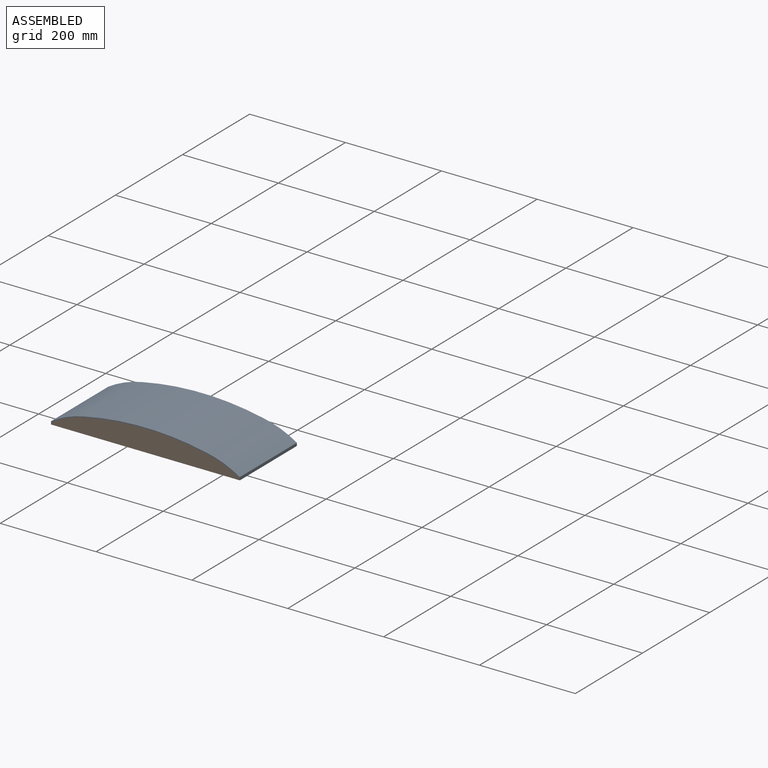
[diagram: assembled view]
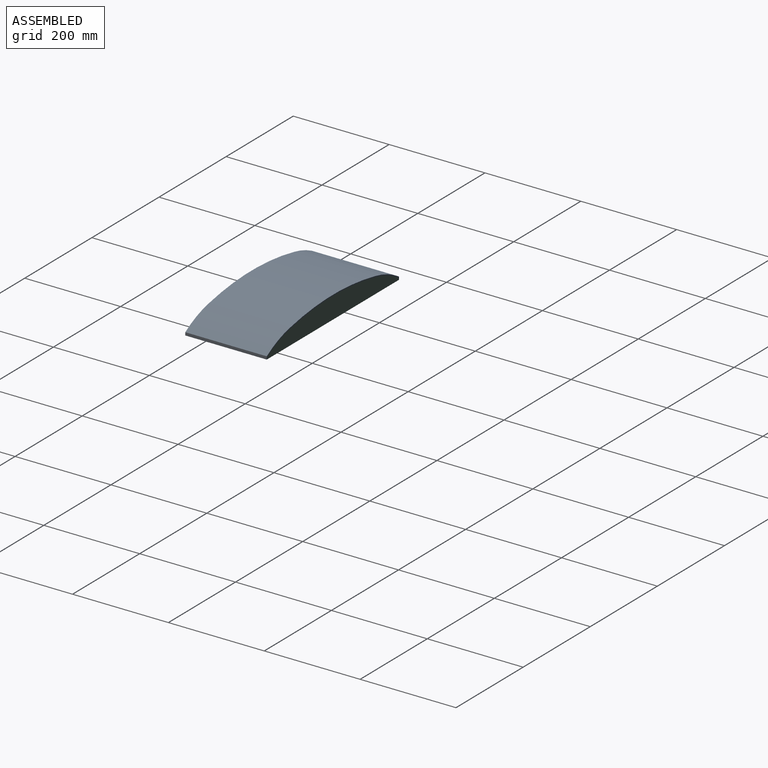
[diagram: assembled view, second angle]
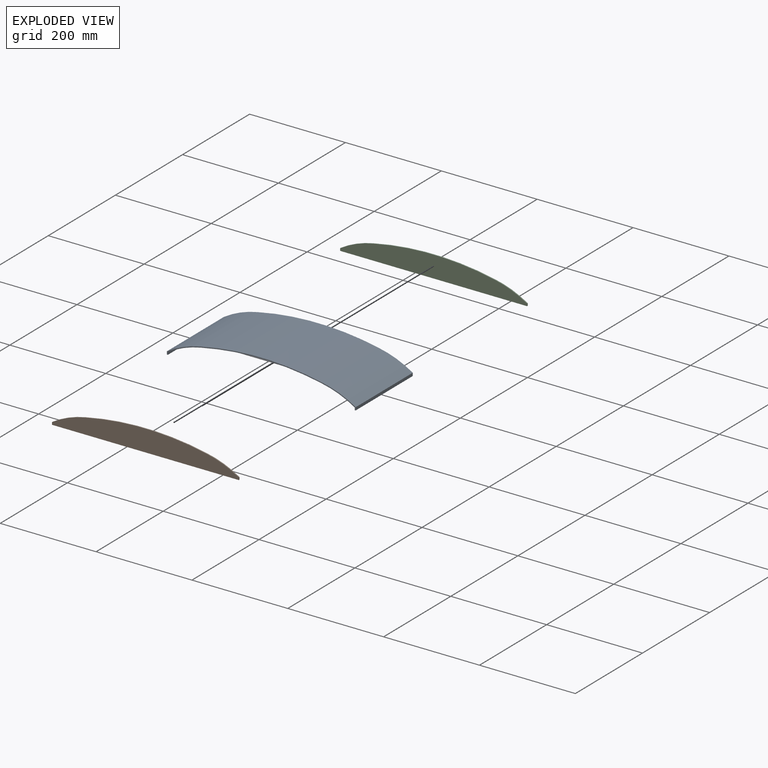
[diagram: exploded view]
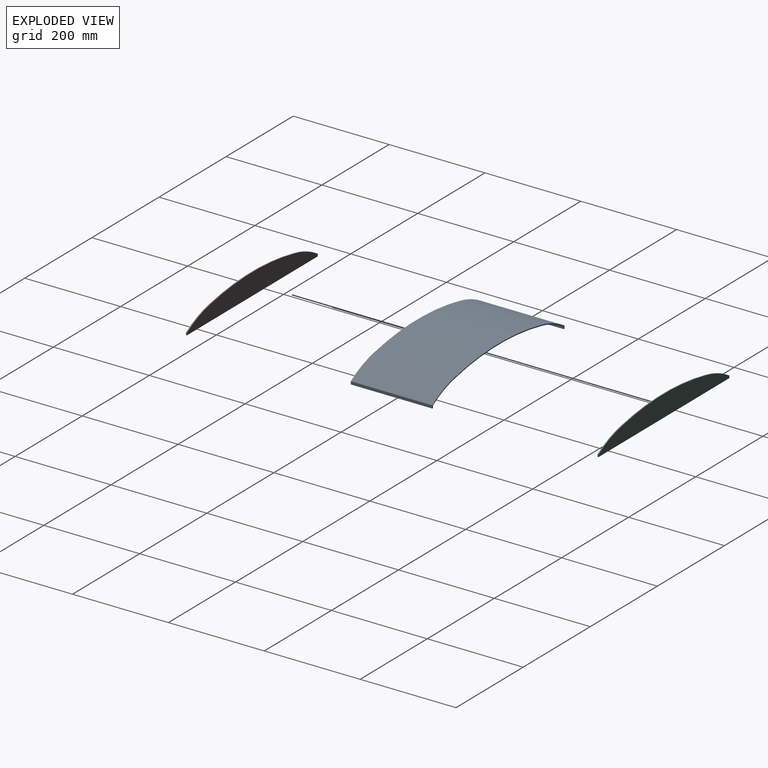
[diagram: exploded view, second angle]
ASSEMBLY  parts=3 mates=6
PART A: 14 faces, bbox 394x170x47 mm
  f0: cylinder r=202mm len=170mm, axis (0,-1,0), area 12981.3mm2, adj f1,f11,f12,f13
  f1: cylinder r=619.12mm len=252.77mm, axis (0,-1,0), area 43274.8mm2, adj f0,f2,f12,f13
  f2: cylinder r=202mm len=170mm, axis (0,-1,0), area 12981.3mm2, adj f1,f3,f12,f13
  f3: plane 170x6.1mm, normal (-1,0,0), area 1037.7mm2, adj f2,f4,f12,f13
  f4: plane 170x2mm, normal (0,0,-1), area 340mm2, adj f3,f5,f12,f13
  f5: plane 170x5mm, normal (1,0,0), area 850mm2, adj f4,f6,f12,f13
  f6: cylinder r=200mm len=170mm, axis (0,-1,0), area 12669.2mm2, adj f5,f7,f12,f13
  f7: cylinder r=617.12mm len=251.99mm, axis (0,-1,0), area 43141.5mm2, adj f6,f8,f12,f13
  f8: cylinder r=200mm len=170mm, axis (0,-1,0), area 12669.2mm2, adj f7,f9,f12,f13
  f9: plane 170x5mm, normal (-1,0,0), area 850mm2, adj f8,f10,f12,f13
  f10: plane 170x2mm, normal (0,0,-1), area 340mm2, adj f9,f11,f12,f13
  f11: plane 170x6.1mm, normal (1,0,0), area 1037.7mm2, adj f0,f10,f12,f13
  f12: plane 393.99x47mm, normal (0,1,0), area 832.3mm2, adj f0,f1,f2,f3,f4,f5,f6,f7
  f13: plane 393.99x47mm, normal (0,-1,0), area 832.3mm2, adj f0,f1,f2,f3,f4,f5,f6,f7
PART B: 8 faces, bbox 390x2x45 mm
  f0: plane 5x2mm, normal (-1,0,0), area 10mm2, adj f1,f5,f6,f7
  f1: plane 390x2mm, normal (0,0,-1), area 780mm2, adj f0,f2,f6,f7
  f2: plane 5x2mm, normal (1,0,0), area 10mm2, adj f1,f3,f6,f7
  f3: cylinder r=200mm len=69mm, axis (0,-1,0), area 149mm2, adj f2,f4,f6,f7
  f4: cylinder r=617.12mm len=252mm, axis (0,-1,0), area 507.6mm2, adj f3,f5,f6,f7
  f5: cylinder r=200mm len=69mm, axis (0,-1,0), area 149mm2, adj f0,f4,f6,f7
  f6: plane 390x45mm, normal (0,1,0), area 13148.2mm2, adj f0,f1,f2,f3,f4,f5
  f7: plane 390x45mm, normal (0,-1,0), area 13148.2mm2, adj f0,f1,f2,f3,f4,f5
PART C: same geometry as B
PLACE A t=(-153.12,165.8,-26.12)mm
PLACE B t=(-153.13,165.8,-26.12)mm
PLACE C t=(-153.12,333.8,-26.12)mm
MATE planar C.f0 <-> A.f5  axis (-1,0,0) through (-348.12,334.8,-23.62)mm
MATE planar A.f13 <-> B.f7  axis (0,-1,0) through (-153.12,165.8,7.17)mm
MATE planar B.f1 <-> A.f4  axis (0,0,-1) through (-153.13,166.8,-26.12)mm
MATE planar C.f6 <-> A.f12  axis (0,1,0) through (-153.12,335.8,-7.48)mm
MATE planar B.f2 <-> A.f9  axis (1,0,0) through (41.87,166.8,-23.62)mm
MATE planar A.f10 <-> C.f1  axis (0,0,-1) through (42.87,250.8,-26.12)mm
